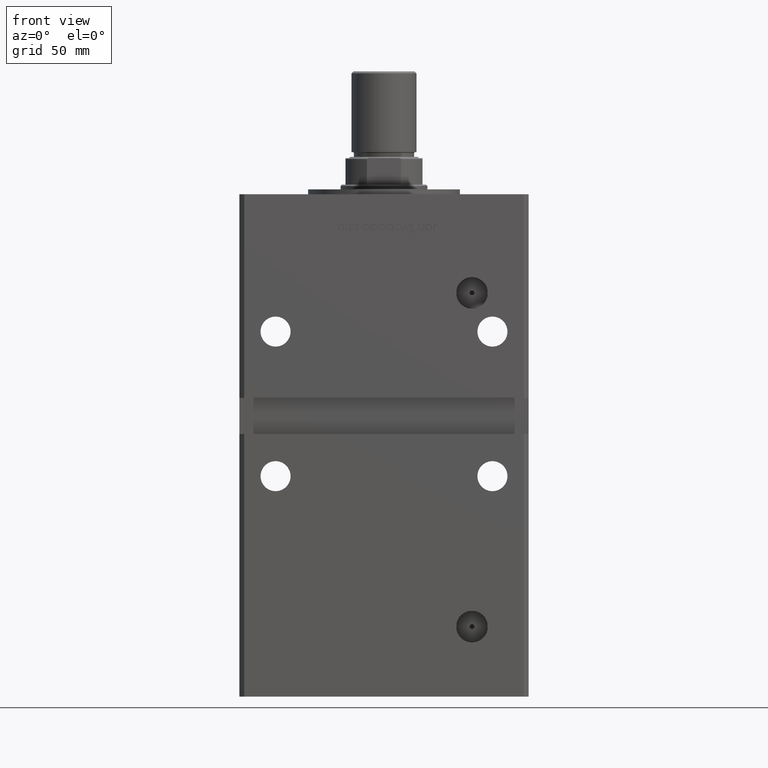
[diagram: clean part render]
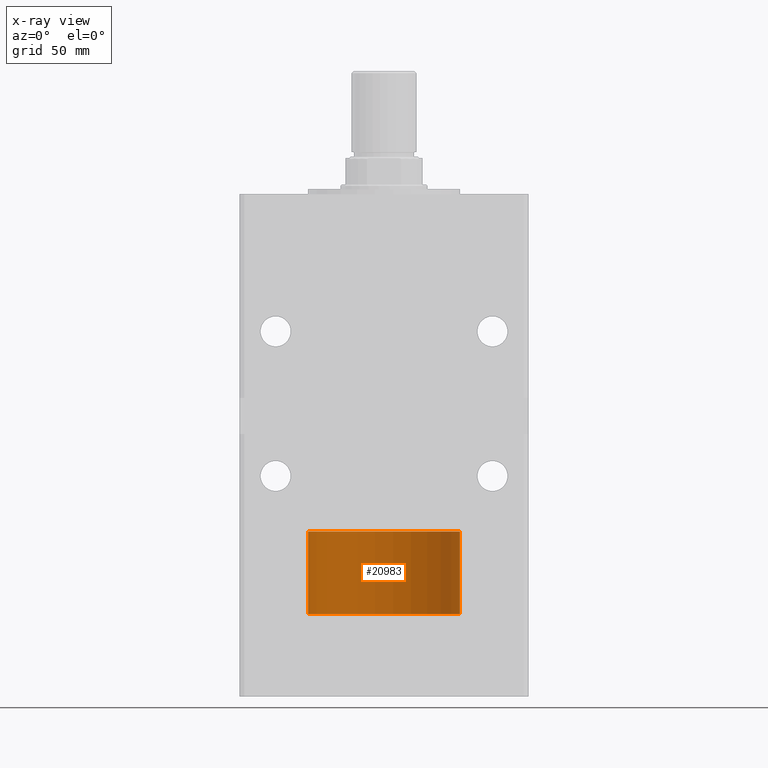
[diagram: x-ray — body ghosted, one internal face saturated and labeled with its STEP entity id]
A machine part, front view, then the same camera in x-ray: the body is ghosted and one INTERNAL B-rep face — a face not visible from any outside direction — is saturated and labeled: STEP entity #20983.
In plain terms, the highlighted cylindrical surface (partial cylindrical patch) has radius 31.5 mm, axis along (-0, -0, -1).
Its self-contained STEP definition (entity closure, byte-faithful):
#21 = EDGE_CURVE ( 'NONE', #28785, #12690, #883, .T. ) ;
#513 = DIRECTION ( 'NONE',  ( -1.000000000000000000, 0.000000000000000000, 0.000000000000000000 ) ) ;
#883 = LINE ( 'NONE', #9268, #29524 ) ;
#2307 = DIRECTION ( 'NONE',  ( 1.000000000000000000, 0.000000000000000000, 0.000000000000000000 ) ) ;
#4566 = FACE_OUTER_BOUND ( 'NONE', #8564, .T. ) ;
#8564 = EDGE_LOOP ( 'NONE', ( #10451, #33442, #18479, #12012 ) ) ;
#8999 = DIRECTION ( 'NONE',  ( -0.000000000000000000, -0.000000000000000000, -1.000000000000000000 ) ) ;
#9036 = EDGE_CURVE ( 'NONE', #53388, #13899, #43952, .T. ) ;
#9268 = CARTESIAN_POINT ( 'NONE',  ( 31.50000000000000000, 3.857637417314162689E-15, 34.25000000000000000 ) ) ;
#9281 = CIRCLE ( 'NONE', #10186, 31.50000000000000000 ) ;
#10186 = AXIS2_PLACEMENT_3D ( 'NONE', #28278, #24219, #36630 ) ;
#10451 = ORIENTED_EDGE ( 'NONE', *, *, #52950, .F. ) ;
#12012 = ORIENTED_EDGE ( 'NONE', *, *, #9036, .F. ) ;
#12690 = VERTEX_POINT ( 'NONE', #31002 ) ;
#13899 = VERTEX_POINT ( 'NONE', #43641 ) ;
#15664 = AXIS2_PLACEMENT_3D ( 'NONE', #23144, #34471, #2307 ) ;
#18479 = ORIENTED_EDGE ( 'NONE', *, *, #39927, .T. ) ;
#19904 = DIRECTION ( 'NONE',  ( -0.000000000000000000, -0.000000000000000000, -1.000000000000000000 ) ) ;
#20983 = ADVANCED_FACE ( 'NONE', ( #4566 ), #44871, .T. ) ;
#22938 = VECTOR ( 'NONE', #19904, 1000.000000000000000 ) ;
#23144 = CARTESIAN_POINT ( 'NONE',  ( 0.000000000000000000, 0.000000000000000000, 34.25000000000000000 ) ) ;
#23685 = CARTESIAN_POINT ( 'NONE',  ( -31.50000000000000000, 0.000000000000000000, 34.25000000000000000 ) ) ;
#24081 = CARTESIAN_POINT ( 'NONE',  ( 0.000000000000000000, 0.000000000000000000, 34.25000000000000000 ) ) ;
#24219 = DIRECTION ( 'NONE',  ( 0.000000000000000000, 0.000000000000000000, 1.000000000000000000 ) ) ;
#28278 = CARTESIAN_POINT ( 'NONE',  ( 0.000000000000000000, 0.000000000000000000, 0.000000000000000000 ) ) ;
#28785 = VERTEX_POINT ( 'NONE', #50746 ) ;
#29524 = VECTOR ( 'NONE', #8999, 1000.000000000000000 ) ;
#31002 = CARTESIAN_POINT ( 'NONE',  ( 31.50000000000000000, 3.857637417314162689E-15, 0.000000000000000000 ) ) ;
#31975 = CARTESIAN_POINT ( 'NONE',  ( -31.50000000000000000, 0.000000000000000000, 34.25000000000000000 ) ) ;
#33442 = ORIENTED_EDGE ( 'NONE', *, *, #21, .T. ) ;
#34471 = DIRECTION ( 'NONE',  ( 0.000000000000000000, 0.000000000000000000, 1.000000000000000000 ) ) ;
#36630 = DIRECTION ( 'NONE',  ( 1.000000000000000000, 0.000000000000000000, 0.000000000000000000 ) ) ;
#37186 = CIRCLE ( 'NONE', #15664, 31.50000000000000000 ) ;
#37537 = DIRECTION ( 'NONE',  ( -0.000000000000000000, -0.000000000000000000, -1.000000000000000000 ) ) ;
#39927 = EDGE_CURVE ( 'NONE', #12690, #13899, #9281, .T. ) ;
#43641 = CARTESIAN_POINT ( 'NONE',  ( -31.50000000000000000, 0.000000000000000000, 0.000000000000000000 ) ) ;
#43952 = LINE ( 'NONE', #23685, #22938 ) ;
#44871 = CYLINDRICAL_SURFACE ( 'NONE', #47694, 31.50000000000000000 ) ;
#47694 = AXIS2_PLACEMENT_3D ( 'NONE', #24081, #37537, #513 ) ;
#50746 = CARTESIAN_POINT ( 'NONE',  ( 31.50000000000000000, 3.857637417314162689E-15, 34.25000000000000000 ) ) ;
#52950 = EDGE_CURVE ( 'NONE', #28785, #53388, #37186, .T. ) ;
#53388 = VERTEX_POINT ( 'NONE', #31975 ) ;